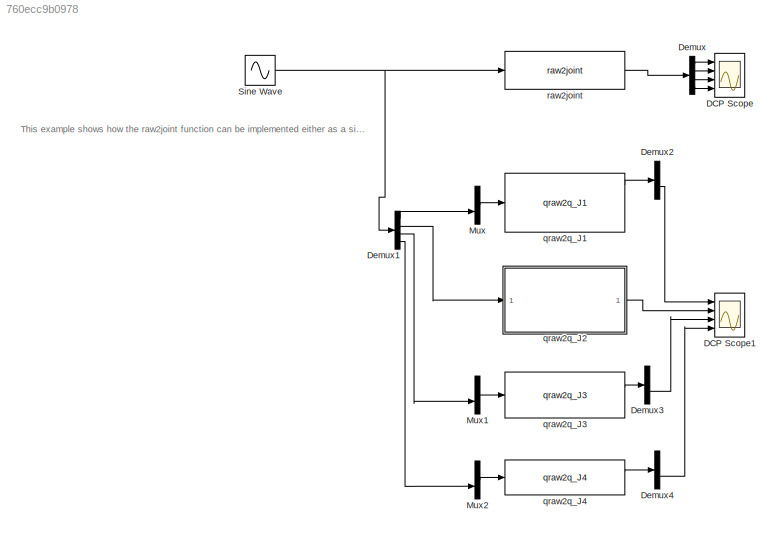
MODEL slx_760ecc9b0978
KIND model
CONFIG AbsTol = auto
CONFIG EnableMultiTasking = on
CONFIG FixedStep = 0.001
CONFIG MaxStep = auto
CONFIG MinStep = auto
CONFIG RelTol = 1e-3
CONFIG SampleTimeConstraint = Unconstrained
CONFIG Solver = ode5
CONFIG SolverName = ode5
CONFIG StartTime = 0.0
CONFIG StopTime = 20
BLOCK [Scope] DCP Scope
  NumInputPorts = 4
  Ports = [4]
  ScopeSpecificationString = Simulink.scopes.TimeScopeBlockCfg('CurrentConfiguration', extmgr.ConfigurationSet(extmgr.Configuration('Core','General UI',true,'FigureColor',[1 1 1]),extmgr.Configuration('Core','Source UI',true),extmgr.Configuration('Sources','WiredSimulink',true),extmgr.Configuration('Visuals','Time Domain',true,'SerializedDisplays',{struct('MinYLimReal','-0.00305','MaxYLimReal','0.00305','YLabelReal','Relative...<+3917ch>
BLOCK [Scope] DCP Scope1
  NumInputPorts = 4
  Ports = [4]
  ScopeSpecificationString = Simulink.scopes.TimeScopeBlockCfg('CurrentConfiguration', extmgr.ConfigurationSet(extmgr.Configuration('Core','General UI',true,'FigureColor',[1 1 1]),extmgr.Configuration('Core','Source UI',true),extmgr.Configuration('Sources','WiredSimulink',true,'DataLoggingVariableName','ScopeData1'),extmgr.Configuration('Visuals','Time Domain',true,'SerializedDisplays',{struct('MinYLimReal','-3599.99975','Max...<+3974ch>
BLOCK [Demux] Demux
  DisplayOption = bar
  Ports = [1, 4]
BLOCK [Demux] Demux1
  DisplayOption = bar
  Ports = [1, 4]
BLOCK [Demux] Demux2
  DisplayOption = bar
  Outputs = 2
  Ports = [1, 2]
BLOCK [Demux] Demux3
  DisplayOption = bar
  Outputs = 2
  Ports = [1, 2]
BLOCK [Demux] Demux4
  DisplayOption = bar
  Outputs = 2
  Ports = [1, 2]
BLOCK [Mux] Mux
  DisplayOption = bar
  Inputs = 2
  Ports = [2, 1]
BLOCK [Mux] Mux1
  DisplayOption = bar
  Inputs = 2
  Ports = [2, 1]
BLOCK [Mux] Mux2
  DisplayOption = bar
  Inputs = 2
  Ports = [2, 1]
BLOCK [Sin] Sine Wave
  Amplitude = [5 6 4 7]
  Ports = [0, 1]
  SampleTime = 0
BLOCK [Reference] qraw2q_J1  REF=dcpctrl/qraw2q_J1
  Ports = [1, 4]
  SourceBlock = dcpctrl/qraw2q_J1
  SourceType = SubSystem
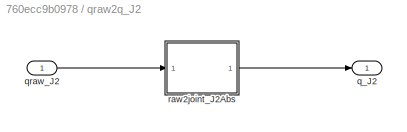
BLOCK [SubSystem] qraw2q_J2
  Ports = [1, 1]
  RequestExecContextInheritance = off
  Variant = off
BLOCK [Outport] qraw2q_J2/q_J2
  IconDisplay = Port number
BLOCK [Inport] qraw2q_J2/qraw_J2
  IconDisplay = Port number
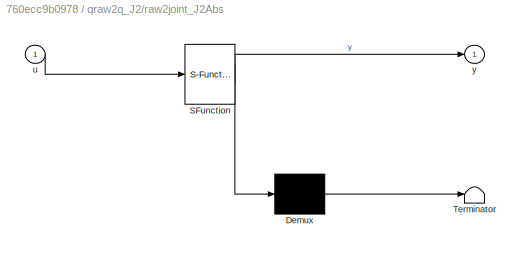
BLOCK [SubSystem] qraw2q_J2/raw2joint_J2Abs
  ErrorFcn = Stateflow.Translate.translate
  PermitHierarchicalResolution = ExplicitOnly
  Ports = [1, 1]
  RequestExecContextInheritance = off
  SFBlockType = MATLAB Function
  TreatAsAtomicUnit = on
  Variant = off
BLOCK [Demux] qraw2q_J2/raw2joint_J2Abs/ Demux 
  Outputs = 1
  Ports = [1, 1]
BLOCK [S-Function] qraw2q_J2/raw2joint_J2Abs/ SFunction 
  EnableBusSupport = on
  FunctionName = sf_sfun
  Parameters = robot
  PortCounts = [1 2]
  Ports = [1, 2]
  SFcnIsStateOwnerBlock = off
  SFunctionDeploymentMode = off
  Tag = Stateflow S-Function raw2jointDemo 1
BLOCK [Terminator] qraw2q_J2/raw2joint_J2Abs/ Terminator 
BLOCK [Inport] qraw2q_J2/raw2joint_J2Abs/u
  IconDisplay = Port number
BLOCK [Outport] qraw2q_J2/raw2joint_J2Abs/y
  IconDisplay = Port number
BLOCK [Reference] qraw2q_J3  REF=dcpctrl/qraw2q_J3
  Ports = [1, 2]
  SourceBlock = dcpctrl/qraw2q_J3
  SourceType = SubSystem
BLOCK [Reference] qraw2q_J4  REF=dcpctrl/qraw2q_J4
  Ports = [1, 2]
  SourceBlock = dcpctrl/qraw2q_J4
  SourceType = SubSystem
BLOCK [Reference] raw2joint  REF=dcpctrl/raw2joint
  Ports = [1, 1]
  SourceBlock = dcpctrl/raw2joint
  SourceType = SubSystem
ANNOTATION (root): This example shows how the raw2joint function can be implemented either as a single function, or as separate functions on a per-joint basis. The per-joint basis functions are preferable, as they support inputs from absolute & relative encoders
LINE Demux1:1 -> Mux:2
LINE Demux1:2 -> qraw2q_J2:1
LINE Demux1:3 -> Mux1:2
LINE Demux1:4 -> Mux2:2
LINE Demux2:2 -> DCP Scope1:1
LINE Demux3:2 -> DCP Scope1:3
LINE Demux4:2 -> DCP Scope1:4
LINE Demux:1 -> DCP Scope:1
LINE Demux:2 -> DCP Scope:2
LINE Demux:3 -> DCP Scope:3
LINE Demux:4 -> DCP Scope:4
LINE Mux1:1 -> qraw2q_J3:1
LINE Mux2:1 -> qraw2q_J4:1
LINE Mux:1 -> qraw2q_J1:1
NET Sine Wave:1 -> Demux1:1, raw2joint:1
LINE qraw2q_J1:1 -> Demux2:1
LINE qraw2q_J2/qraw_J2:1 -> qraw2q_J2/raw2joint_J2Abs:1
LINE qraw2q_J2/raw2joint_J2Abs:1 -> qraw2q_J2/q_J2:1
LINE qraw2q_J2:1 -> DCP Scope1:2
LINE qraw2q_J3:1 -> Demux3:1
LINE qraw2q_J4:1 -> Demux4:1
LINE raw2joint:1 -> Demux:1
note: NET lines group one-source signal fan-out (src -> all destinations, sorted); 1:1 wires keep LINE
CHART qraw2q_J2/raw2joint_J2Abs states=1 transitions=1
  STATE_LABEL 'eML_blk_kernel()'
  STATE_LABEL "SCRIPT:\nfunction y = fcn(u,robot)\n\n%#codegen\n\ny_temp = raw2jointJ2Abs_at40gw(robot,u');\ny = y_temp';\n"
